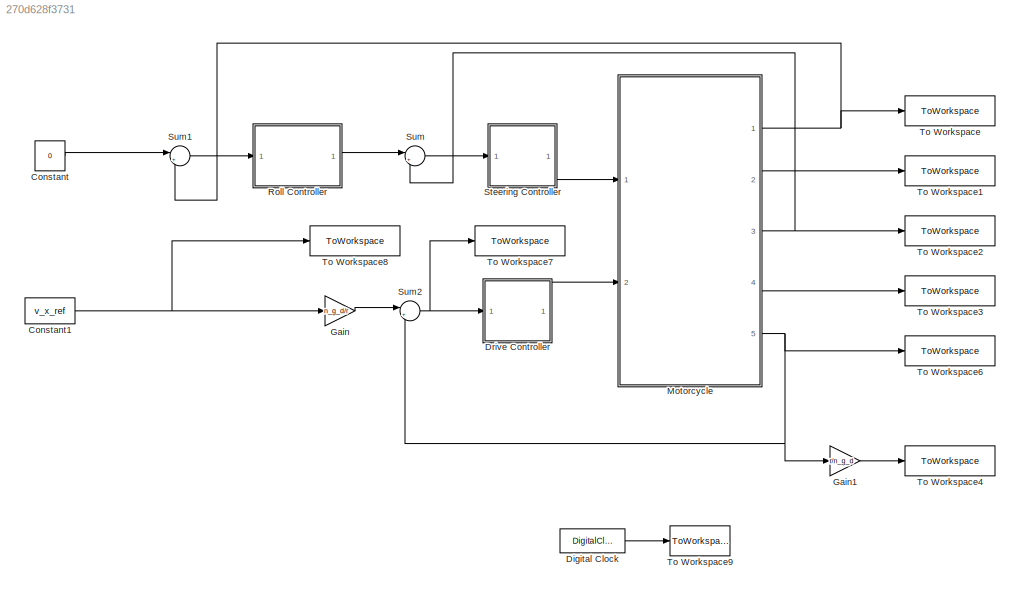
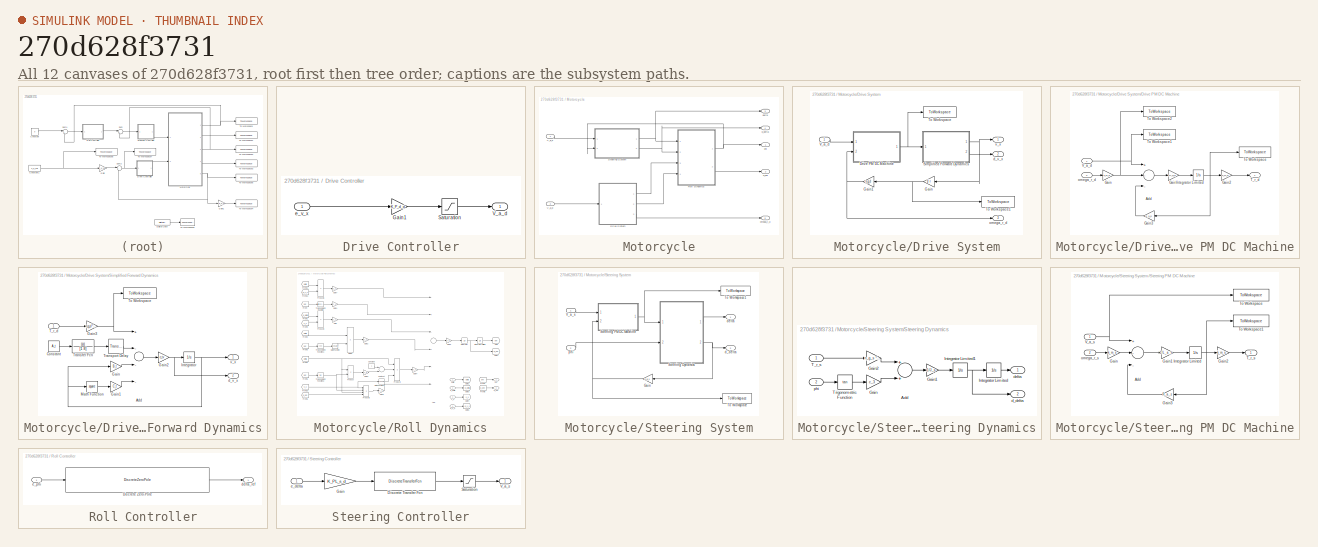
[diagram: thumbnail index - all 12 canvases of the model, root first then tree order]
MODEL slx_270d628f3731
KIND model
CONFIG AbsTol = auto
CONFIG EnableMultiTasking = off
CONFIG FixedStep = auto
CONFIG MaxStep = max_time_step
CONFIG MinStep = auto
CONFIG RelTol = 1e-3
CONFIG SampleTimeConstraint = Unconstrained
CONFIG Solver = VariableStepAuto
CONFIG SolverName = VariableStepAuto
CONFIG StartTime = 0.0
CONFIG StopTime = Tsim
BLOCK [Constant] Constant
  Value = 0
BLOCK [Constant] Constant1
  Value = v_x_ref
BLOCK [DigitalClock] Digital Clock
  SampleTime = T_s
BLOCK [SubSystem] Drive Controller
  Ports = [1, 1]
  RequestExecContextInheritance = off
BLOCK [Gain] Drive Controller/Gain1
  AttributesFormatString = %<Gain>
  Gain = K_P_d_d
  OutDataTypeStr = Inherit: Inherit via internal rule
  ParamDataTypeStr = Inherit: Inherit via internal rule
  SaturateOnIntegerOverflow = off
BLOCK [Saturate] Drive Controller/Saturation
  InputPortMap = u0
  LowerLimit = -V_a_max
  Ports = [1, 1]
  UpperLimit = V_a_max
BLOCK [Outport] Drive Controller/V_a_d
  IconDisplay = Port number
BLOCK [Inport] Drive Controller/e_v_x
  IconDisplay = Port number
BLOCK [Gain] Gain
  AttributesFormatString = %<Gain>
  Gain = n_g_d/r
  OutDataTypeStr = Inherit: Inherit via internal rule
  ParamDataTypeStr = Inherit: Inherit via internal rule
  SaturateOnIntegerOverflow = off
BLOCK [Gain] Gain1
  AttributesFormatString = %<Gain>
  Gain = r/n_g_d
  OutDataTypeStr = Inherit: Inherit via internal rule
  ParamDataTypeStr = Inherit: Inherit via internal rule
  SaturateOnIntegerOverflow = off
BLOCK [SubSystem] Motorcycle
  Ports = [2, 5]
  RequestExecContextInheritance = off
BLOCK [SubSystem] Motorcycle/Drive System
  Ports = [1, 3]
  RequestExecContextInheritance = off
BLOCK [SubSystem] Motorcycle/Drive System/Drive PM DC Machine
  Ports = [2, 1]
  RequestExecContextInheritance = off
BLOCK [Sum] Motorcycle/Drive System/Drive PM DC Machine/Add
  InputSameDT = off
  Inputs = +--
  OutDataTypeStr = Inherit: Inherit via internal rule
  Ports = [3, 1]
  SaturateOnIntegerOverflow = off
BLOCK [Gain] Motorcycle/Drive System/Drive PM DC Machine/Gain
  AttributesFormatString = %<Gain>
  Gain = k_m_d
  OutDataTypeStr = Inherit: Inherit via internal rule
  ParamDataTypeStr = Inherit: Inherit via internal rule
  SaturateOnIntegerOverflow = off
BLOCK [Gain] Motorcycle/Drive System/Drive PM DC Machine/Gain1
  AttributesFormatString = %<Gain>
  Gain = 1/L_a_d
  OutDataTypeStr = Inherit: Inherit via internal rule
  ParamDataTypeStr = Inherit: Inherit via internal rule
  SaturateOnIntegerOverflow = off
BLOCK [Gain] Motorcycle/Drive System/Drive PM DC Machine/Gain2
  AttributesFormatString = %<Gain>
  Gain = k_m_d
  OutDataTypeStr = Inherit: Inherit via internal rule
  ParamDataTypeStr = Inherit: Inherit via internal rule
  SaturateOnIntegerOverflow = off
BLOCK [Gain] Motorcycle/Drive System/Drive PM DC Machine/Gain3
  AttributesFormatString = %<Gain>
  Gain = R_a_d
  OutDataTypeStr = Inherit: Inherit via internal rule
  ParamDataTypeStr = Inherit: Inherit via internal rule
  SaturateOnIntegerOverflow = off
BLOCK [Integrator] Motorcycle/Drive System/Drive PM DC Machine/Integrator Limited
  LimitOutput = on
  LowerSaturationLimit = -i_a_max
  Ports = [1, 1]
  UpperSaturationLimit = i_a_max
BLOCK [Outport] Motorcycle/Drive System/Drive PM DC Machine/T_r_d
  IconDisplay = Port number
  VectorParamsAs1DForOutWhenUnconnected = off
BLOCK [ToWorkspace] Motorcycle/Drive System/Drive PM DC Machine/To Workspace
  FixptAsFi = on
  MaxDataPoints = inf
  Ports = [1]
  SampleTime = T_s
  VariableName = i_a_d
BLOCK [ToWorkspace] Motorcycle/Drive System/Drive PM DC Machine/To Workspace1
  FixptAsFi = on
  MaxDataPoints = inf
  Ports = [1]
  SampleTime = T_s
  VariableName = V_a_d
BLOCK [ToWorkspace] Motorcycle/Drive System/Drive PM DC Machine/To Workspace2
  FixptAsFi = on
  MaxDataPoints = inf
  Ports = [1]
  SampleTime = T_s
  VariableName = E_a_d
BLOCK [Inport] Motorcycle/Drive System/Drive PM DC Machine/V_a_d
  IconDisplay = Port number
BLOCK [Inport] Motorcycle/Drive System/Drive PM DC Machine/omega_r_d
  IconDisplay = Port number
  Port = 2
BLOCK [Gain] Motorcycle/Drive System/Gain
  AttributesFormatString = %<Gain>
  Gain = 1/ r
  OutDataTypeStr = Inherit: Inherit via internal rule
  ParamDataTypeStr = Inherit: Inherit via internal rule
  SaturateOnIntegerOverflow = off
BLOCK [Gain] Motorcycle/Drive System/Gain1
  AttributesFormatString = %<Gain>
  Gain = n_g_d
  OutDataTypeStr = Inherit: Inherit via internal rule
  ParamDataTypeStr = Inherit: Inherit via internal rule
  SaturateOnIntegerOverflow = off
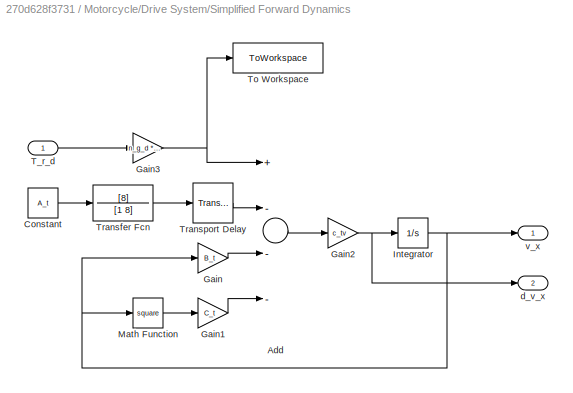
BLOCK [SubSystem] Motorcycle/Drive System/Simplified Forward Dynamics
  Ports = [1, 2]
  RequestExecContextInheritance = off
BLOCK [Sum] Motorcycle/Drive System/Simplified Forward Dynamics/Add
  InputSameDT = off
  Inputs = +---
  OutDataTypeStr = Inherit: Inherit via internal rule
  Ports = [4, 1]
  SaturateOnIntegerOverflow = off
BLOCK [Constant] Motorcycle/Drive System/Simplified Forward Dynamics/Constant
  Value = A_t
BLOCK [Gain] Motorcycle/Drive System/Simplified Forward Dynamics/Gain
  Gain = B_t
  OutDataTypeStr = Inherit: Inherit via internal rule
  ParamDataTypeStr = Inherit: Inherit via internal rule
  SaturateOnIntegerOverflow = off
BLOCK [Gain] Motorcycle/Drive System/Simplified Forward Dynamics/Gain1
  Gain = C_t
  OutDataTypeStr = Inherit: Inherit via internal rule
  ParamDataTypeStr = Inherit: Inherit via internal rule
  SaturateOnIntegerOverflow = off
BLOCK [Gain] Motorcycle/Drive System/Simplified Forward Dynamics/Gain2
  Gain = c_tv
  OutDataTypeStr = Inherit: Inherit via internal rule
  ParamDataTypeStr = Inherit: Inherit via internal rule
  SaturateOnIntegerOverflow = off
BLOCK [Gain] Motorcycle/Drive System/Simplified Forward Dynamics/Gain3
  AttributesFormatString = %<Gain>
  Gain = n_g_d * eta_g_d
  OutDataTypeStr = Inherit: Inherit via internal rule
  ParamDataTypeStr = Inherit: Inherit via internal rule
  SaturateOnIntegerOverflow = off
BLOCK [Integrator] Motorcycle/Drive System/Simplified Forward Dynamics/Integrator
  Ports = [1, 1]
BLOCK [Math] Motorcycle/Drive System/Simplified Forward Dynamics/Math Function
  Operator = square
  Ports = [1, 1]
BLOCK [Inport] Motorcycle/Drive System/Simplified Forward Dynamics/T_r_d
  IconDisplay = Port number
BLOCK [ToWorkspace] Motorcycle/Drive System/Simplified Forward Dynamics/To Workspace
  FixptAsFi = on
  MaxDataPoints = inf
  Ports = [1]
  SampleTime = T_s
  VariableName = T_axle_d
BLOCK [TransferFcn] Motorcycle/Drive System/Simplified Forward Dynamics/Transfer Fcn
  Denominator = [1 8]
  Numerator = [8]
BLOCK [TransportDelay] Motorcycle/Drive System/Simplified Forward Dynamics/Transport Delay
  BufferSize = 4096
  DelayTime = delay_theta
  Ports = [1, 1]
BLOCK [Outport] Motorcycle/Drive System/Simplified Forward Dynamics/d_v_x
  IconDisplay = Port number
  Port = 2
  VectorParamsAs1DForOutWhenUnconnected = off
BLOCK [Outport] Motorcycle/Drive System/Simplified Forward Dynamics/v_x
  IconDisplay = Port number
  VectorParamsAs1DForOutWhenUnconnected = off
BLOCK [ToWorkspace] Motorcycle/Drive System/To Workspace
  FixptAsFi = on
  MaxDataPoints = inf
  Ports = [1]
  SampleTime = T_s
  VariableName = T_r_d
BLOCK [ToWorkspace] Motorcycle/Drive System/To Workspace1
  FixptAsFi = on
  MaxDataPoints = inf
  Ports = [1]
  SampleTime = T_s
  VariableName = omega_axle_d
BLOCK [Inport] Motorcycle/Drive System/V_a_d
  IconDisplay = Port number
BLOCK [Outport] Motorcycle/Drive System/d_v_x
  IconDisplay = Port number
  Port = 2
  VectorParamsAs1DForOutWhenUnconnected = off
BLOCK [Outport] Motorcycle/Drive System/omega_r_d
  IconDisplay = Port number
  Port = 3
  VectorParamsAs1DForOutWhenUnconnected = off
BLOCK [Outport] Motorcycle/Drive System/v_x
  IconDisplay = Port number
  VectorParamsAs1DForOutWhenUnconnected = off
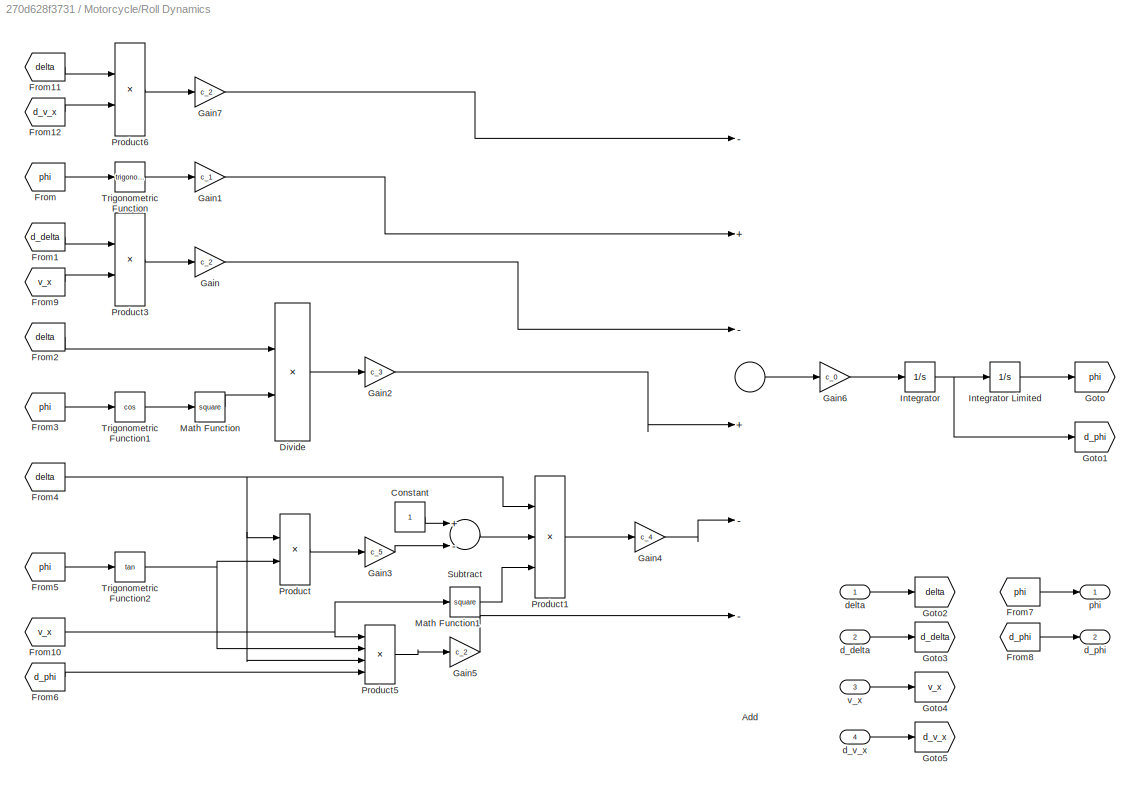
BLOCK [SubSystem] Motorcycle/Roll Dynamics
  Ports = [4, 2]
  RequestExecContextInheritance = off
BLOCK [Sum] Motorcycle/Roll Dynamics/Add
  InputSameDT = off
  Inputs = -+-+--
  OutDataTypeStr = Inherit: Inherit via internal rule
  Ports = [6, 1]
  SaturateOnIntegerOverflow = off
BLOCK [Constant] Motorcycle/Roll Dynamics/Constant
BLOCK [Product] Motorcycle/Roll Dynamics/Divide
  InputSameDT = off
  Inputs = */
  OutDataTypeStr = Inherit: Inherit via internal rule
  Ports = [2, 1]
  RndMeth = Floor
  SaturateOnIntegerOverflow = off
BLOCK [From] Motorcycle/Roll Dynamics/From
  GotoTag = phi
BLOCK [From] Motorcycle/Roll Dynamics/From1
  GotoTag = d_delta
BLOCK [From] Motorcycle/Roll Dynamics/From10
  GotoTag = v_x
BLOCK [From] Motorcycle/Roll Dynamics/From11
  GotoTag = delta
BLOCK [From] Motorcycle/Roll Dynamics/From12
  GotoTag = d_v_x
BLOCK [From] Motorcycle/Roll Dynamics/From2
  GotoTag = delta
BLOCK [From] Motorcycle/Roll Dynamics/From3
  GotoTag = phi
BLOCK [From] Motorcycle/Roll Dynamics/From4
  GotoTag = delta
BLOCK [From] Motorcycle/Roll Dynamics/From5
  GotoTag = phi
BLOCK [From] Motorcycle/Roll Dynamics/From6
  GotoTag = d_phi
BLOCK [From] Motorcycle/Roll Dynamics/From7
  GotoTag = phi
BLOCK [From] Motorcycle/Roll Dynamics/From8
  GotoTag = d_phi
BLOCK [From] Motorcycle/Roll Dynamics/From9
  GotoTag = v_x
BLOCK [Gain] Motorcycle/Roll Dynamics/Gain
  Gain = c_2
  OutDataTypeStr = Inherit: Inherit via internal rule
  ParamDataTypeStr = Inherit: Inherit via internal rule
  SaturateOnIntegerOverflow = off
BLOCK [Gain] Motorcycle/Roll Dynamics/Gain1
  Gain = c_1
  OutDataTypeStr = Inherit: Inherit via internal rule
  ParamDataTypeStr = Inherit: Inherit via internal rule
  SaturateOnIntegerOverflow = off
BLOCK [Gain] Motorcycle/Roll Dynamics/Gain2
  Gain = c_3
  OutDataTypeStr = Inherit: Inherit via internal rule
  ParamDataTypeStr = Inherit: Inherit via internal rule
  SaturateOnIntegerOverflow = off
BLOCK [Gain] Motorcycle/Roll Dynamics/Gain3
  Gain = c_5
  OutDataTypeStr = Inherit: Inherit via internal rule
  ParamDataTypeStr = Inherit: Inherit via internal rule
  SaturateOnIntegerOverflow = off
BLOCK [Gain] Motorcycle/Roll Dynamics/Gain4
  Gain = c_4
  OutDataTypeStr = Inherit: Inherit via internal rule
  ParamDataTypeStr = Inherit: Inherit via internal rule
  SaturateOnIntegerOverflow = off
BLOCK [Gain] Motorcycle/Roll Dynamics/Gain5
  Gain = c_2
  OutDataTypeStr = Inherit: Inherit via internal rule
  ParamDataTypeStr = Inherit: Inherit via internal rule
  SaturateOnIntegerOverflow = off
BLOCK [Gain] Motorcycle/Roll Dynamics/Gain6
  Gain = c_0
  OutDataTypeStr = Inherit: Inherit via internal rule
  ParamDataTypeStr = Inherit: Inherit via internal rule
  SaturateOnIntegerOverflow = off
BLOCK [Gain] Motorcycle/Roll Dynamics/Gain7
  Gain = c_2
  OutDataTypeStr = Inherit: Inherit via internal rule
  ParamDataTypeStr = Inherit: Inherit via internal rule
  SaturateOnIntegerOverflow = off
BLOCK [Goto] Motorcycle/Roll Dynamics/Goto
  GotoTag = phi
BLOCK [Goto] Motorcycle/Roll Dynamics/Goto1
  GotoTag = d_phi
BLOCK [Goto] Motorcycle/Roll Dynamics/Goto2
  GotoTag = delta
BLOCK [Goto] Motorcycle/Roll Dynamics/Goto3
  GotoTag = d_delta
BLOCK [Goto] Motorcycle/Roll Dynamics/Goto4
  GotoTag = v_x
BLOCK [Goto] Motorcycle/Roll Dynamics/Goto5
  GotoTag = d_v_x
BLOCK [Integrator] Motorcycle/Roll Dynamics/Integrator
  InitialCondition = d_phi_0
  Ports = [1, 1]
BLOCK [Integrator] Motorcycle/Roll Dynamics/Integrator Limited
  InitialCondition = phi_0
  LimitOutput = on
  LowerSaturationLimit = -pi/2
  Ports = [1, 1]
  UpperSaturationLimit = pi/2
BLOCK [Math] Motorcycle/Roll Dynamics/Math Function
  Operator = square
  Ports = [1, 1]
BLOCK [Math] Motorcycle/Roll Dynamics/Math Function1
  Operator = square
  Ports = [1, 1]
BLOCK [Product] Motorcycle/Roll Dynamics/Product
  InputSameDT = off
  OutDataTypeStr = Inherit: Inherit via internal rule
  Ports = [2, 1]
  RndMeth = Floor
  SaturateOnIntegerOverflow = off
BLOCK [Product] Motorcycle/Roll Dynamics/Product1
  InputSameDT = off
  Inputs = 3
  OutDataTypeStr = Inherit: Inherit via internal rule
  Ports = [3, 1]
  RndMeth = Floor
  SaturateOnIntegerOverflow = off
BLOCK [Product] Motorcycle/Roll Dynamics/Product3
  InputSameDT = off
  OutDataTypeStr = Inherit: Inherit via internal rule
  Ports = [2, 1]
  RndMeth = Floor
  SaturateOnIntegerOverflow = off
BLOCK [Product] Motorcycle/Roll Dynamics/Product5
  InputSameDT = off
  Inputs = 4
  OutDataTypeStr = Inherit: Inherit via internal rule
  Ports = [4, 1]
  RndMeth = Floor
  SaturateOnIntegerOverflow = off
BLOCK [Product] Motorcycle/Roll Dynamics/Product6
  InputSameDT = off
  OutDataTypeStr = Inherit: Inherit via internal rule
  Ports = [2, 1]
  RndMeth = Floor
  SaturateOnIntegerOverflow = off
BLOCK [Sum] Motorcycle/Roll Dynamics/Subtract
  InputSameDT = off
  Inputs = +-
  OutDataTypeStr = Inherit: Inherit via internal rule
  Ports = [2, 1]
  SaturateOnIntegerOverflow = off
BLOCK [Trigonometry] Motorcycle/Roll Dynamics/Trigonometric Function
  Ports = [1, 1]
BLOCK [Trigonometry] Motorcycle/Roll Dynamics/Trigonometric Function1
  Operator = cos
  Ports = [1, 1]
BLOCK [Trigonometry] Motorcycle/Roll Dynamics/Trigonometric Function2
  Operator = tan
  Ports = [1, 1]
BLOCK [Inport] Motorcycle/Roll Dynamics/d_delta
  IconDisplay = Port number
  Port = 2
BLOCK [Outport] Motorcycle/Roll Dynamics/d_phi
  IconDisplay = Port number
  Port = 2
  VectorParamsAs1DForOutWhenUnconnected = off
BLOCK [Inport] Motorcycle/Roll Dynamics/d_v_x
  IconDisplay = Port number
  Port = 4
BLOCK [Inport] Motorcycle/Roll Dynamics/delta
  IconDisplay = Port number
BLOCK [Outport] Motorcycle/Roll Dynamics/phi
  IconDisplay = Port number
  VectorParamsAs1DForOutWhenUnconnected = off
BLOCK [Inport] Motorcycle/Roll Dynamics/v_x
  IconDisplay = Port number
  Port = 3
BLOCK [SubSystem] Motorcycle/Steering System
  Ports = [2, 2]
  RequestExecContextInheritance = off
BLOCK [Gain] Motorcycle/Steering System/Gain
  AttributesFormatString = %<Gain>
  Gain = n_g_s
  OutDataTypeStr = Inherit: Inherit via internal rule
  ParamDataTypeStr = Inherit: Inherit via internal rule
  SaturateOnIntegerOverflow = off
BLOCK [SubSystem] Motorcycle/Steering System/Steering Dynamics
  Ports = [2, 2]
  RequestExecContextInheritance = off
BLOCK [Sum] Motorcycle/Steering System/Steering Dynamics/Add
  InputSameDT = off
  OutDataTypeStr = Inherit: Inherit via internal rule
  Ports = [2, 1]
  SaturateOnIntegerOverflow = off
BLOCK [Gain] Motorcycle/Steering System/Steering Dynamics/Gain
  Gain = c_3
  OutDataTypeStr = Inherit: Inherit via internal rule
  ParamDataTypeStr = Inherit: Inherit via internal rule
  SaturateOnIntegerOverflow = off
BLOCK [Gain] Motorcycle/Steering System/Steering Dynamics/Gain1
  AttributesFormatString = %<Gain>
  Gain = 1/J_s
  OutDataTypeStr = Inherit: Inherit via internal rule
  ParamDataTypeStr = Inherit: Inherit via internal rule
  SaturateOnIntegerOverflow = off
BLOCK [Gain] Motorcycle/Steering System/Steering Dynamics/Gain2
  AttributesFormatString = %<Gain>
  Gain = n_g_s * eta_g_s
  OutDataTypeStr = Inherit: Inherit via internal rule
  ParamDataTypeStr = Inherit: Inherit via internal rule
  SaturateOnIntegerOverflow = off
BLOCK [Integrator] Motorcycle/Steering System/Steering Dynamics/Integrator Limited
  InitialCondition = delta_0
  LimitOutput = on
  LowerSaturationLimit = -delta_max
  Ports = [1, 1]
  UpperSaturationLimit = delta_max
BLOCK [Integrator] Motorcycle/Steering System/Steering Dynamics/Integrator Limited1
  LimitOutput = on
  LowerSaturationLimit = -d_delta_max
  Ports = [1, 1]
  UpperSaturationLimit = d_delta_max
BLOCK [Inport] Motorcycle/Steering System/Steering Dynamics/T_r_s
  IconDisplay = Port number
BLOCK [Trigonometry] Motorcycle/Steering System/Steering Dynamics/Trigonometric Function
  Operator = tan
  Ports = [1, 1]
BLOCK [Outport] Motorcycle/Steering System/Steering Dynamics/d_delta
  IconDisplay = Port number
  Port = 2
  VectorParamsAs1DForOutWhenUnconnected = off
BLOCK [Outport] Motorcycle/Steering System/Steering Dynamics/delta
  IconDisplay = Port number
  VectorParamsAs1DForOutWhenUnconnected = off
BLOCK [Inport] Motorcycle/Steering System/Steering Dynamics/phi
  IconDisplay = Port number
  Port = 2
BLOCK [SubSystem] Motorcycle/Steering System/Steering PM DC Machine
  Ports = [2, 1]
  RequestExecContextInheritance = off
BLOCK [Sum] Motorcycle/Steering System/Steering PM DC Machine/Add
  InputSameDT = off
  Inputs = +--
  OutDataTypeStr = Inherit: Inherit via internal rule
  Ports = [3, 1]
  SaturateOnIntegerOverflow = off
BLOCK [Gain] Motorcycle/Steering System/Steering PM DC Machine/Gain
  AttributesFormatString = %<Gain>
  Gain = k_m_s
  OutDataTypeStr = Inherit: Inherit via internal rule
  ParamDataTypeStr = Inherit: Inherit via internal rule
  SaturateOnIntegerOverflow = off
BLOCK [Gain] Motorcycle/Steering System/Steering PM DC Machine/Gain1
  AttributesFormatString = %<Gain>
  Gain = 1/L_a_s
  OutDataTypeStr = Inherit: Inherit via internal rule
  ParamDataTypeStr = Inherit: Inherit via internal rule
  SaturateOnIntegerOverflow = off
BLOCK [Gain] Motorcycle/Steering System/Steering PM DC Machine/Gain2
  AttributesFormatString = %<Gain>
  Gain = k_m_s
  OutDataTypeStr = Inherit: Inherit via internal rule
  ParamDataTypeStr = Inherit: Inherit via internal rule
  SaturateOnIntegerOverflow = off
BLOCK [Gain] Motorcycle/Steering System/Steering PM DC Machine/Gain3
  AttributesFormatString = %<Gain>
  Gain = R_a_s
  OutDataTypeStr = Inherit: Inherit via internal rule
  ParamDataTypeStr = Inherit: Inherit via internal rule
  SaturateOnIntegerOverflow = off
BLOCK [Integrator] Motorcycle/Steering System/Steering PM DC Machine/Integrator Limited
  LimitOutput = on
  LowerSaturationLimit = -i_a_max
  Ports = [1, 1]
  UpperSaturationLimit = i_a_max
BLOCK [Outport] Motorcycle/Steering System/Steering PM DC Machine/T_r_s
  IconDisplay = Port number
  VectorParamsAs1DForOutWhenUnconnected = off
BLOCK [ToWorkspace] Motorcycle/Steering System/Steering PM DC Machine/To Workspace
  FixptAsFi = on
  MaxDataPoints = inf
  Ports = [1]
  SampleTime = T_s
  VariableName = V_a_s
BLOCK [ToWorkspace] Motorcycle/Steering System/Steering PM DC Machine/To Workspace1
  FixptAsFi = on
  MaxDataPoints = inf
  Ports = [1]
  SampleTime = T_s
  VariableName = i_a_s
BLOCK [Inport] Motorcycle/Steering System/Steering PM DC Machine/V_a_s
  IconDisplay = Port number
BLOCK [Inport] Motorcycle/Steering System/Steering PM DC Machine/omega_r_s
  IconDisplay = Port number
  Port = 2
BLOCK [ToWorkspace] Motorcycle/Steering System/To Workspace
  FixptAsFi = on
  MaxDataPoints = inf
  Ports = [1]
  SampleTime = T_s
  VariableName = omega_r_s
BLOCK [ToWorkspace] Motorcycle/Steering System/To Workspace1
  FixptAsFi = on
  MaxDataPoints = inf
  Ports = [1]
  SampleTime = T_s
  VariableName = T_r_s
BLOCK [Inport] Motorcycle/Steering System/V_a_s
  IconDisplay = Port number
BLOCK [Outport] Motorcycle/Steering System/d_delta
  IconDisplay = Port number
  Port = 2
  VectorParamsAs1DForOutWhenUnconnected = off
BLOCK [Outport] Motorcycle/Steering System/delta
  IconDisplay = Port number
  VectorParamsAs1DForOutWhenUnconnected = off
BLOCK [Inport] Motorcycle/Steering System/phi
  IconDisplay = Port number
  Port = 2
BLOCK [Inport] Motorcycle/V_a_d
  IconDisplay = Port number
  Port = 2
BLOCK [Inport] Motorcycle/V_a_s
  IconDisplay = Port number
BLOCK [Outport] Motorcycle/d_delta
  IconDisplay = Port number
  Port = 4
BLOCK [Outport] Motorcycle/d_phi
  IconDisplay = Port number
  Port = 2
BLOCK [Outport] Motorcycle/delta
  IconDisplay = Port number
  Port = 3
BLOCK [Outport] Motorcycle/omega_r_d
  IconDisplay = Port number
  Port = 5
BLOCK [Outport] Motorcycle/phi
  IconDisplay = Port number
BLOCK [SubSystem] Roll Controller
  Ports = [1, 1]
  RequestExecContextInheritance = off
BLOCK [DiscreteZeroPole] Roll Controller/Discrete Zero-Pole
  Gain = [-K_DPDZ_r_d]
  Poles = [pole_DPDZ_r1_d, pole_DPDZ_r2_d]
  SampleTime = -1
  Zeros = [zero_DPDZ_r1_d, zero_DPDZ_r2_d]
BLOCK [Outport] Roll Controller/delta_ref
  IconDisplay = Port number
BLOCK [Inport] Roll Controller/e_phi
  IconDisplay = Port number
BLOCK [SubSystem] Steering Controller
  Ports = [1, 1]
  RequestExecContextInheritance = off
BLOCK [DiscreteTransferFcn] Steering Controller/Discrete Transfer Fcn
  Denominator = [1 -pole_PL_s_d]
  InputPortMap = u0
  Numerator = [1 -zero_PL_s_d]
  Ports = [1, 1]
  SampleTime = T_s
BLOCK [Gain] Steering Controller/Gain
  Gain = K_PL_s_d
  OutDataTypeStr = Inherit: Inherit via internal rule
  ParamDataTypeStr = Inherit: Inherit via internal rule
  SaturateOnIntegerOverflow = off
BLOCK [Saturate] Steering Controller/Saturation
  InputPortMap = u0
  LowerLimit = -V_a_max
  Ports = [1, 1]
  UpperLimit = V_a_max
BLOCK [Outport] Steering Controller/V_a_s
  IconDisplay = Port number
BLOCK [Inport] Steering Controller/e_delta
  IconDisplay = Port number
BLOCK [Sum] Sum
  IconShape = round
  InputSameDT = off
  Inputs = |+-
  OutDataTypeStr = Inherit: Inherit via internal rule
  Ports = [2, 1]
  SaturateOnIntegerOverflow = off
BLOCK [Sum] Sum1
  IconShape = round
  InputSameDT = off
  Inputs = |+-
  OutDataTypeStr = Inherit: Inherit via internal rule
  Ports = [2, 1]
  SaturateOnIntegerOverflow = off
BLOCK [Sum] Sum2
  IconShape = round
  InputSameDT = off
  Inputs = |+-
  OutDataTypeStr = Inherit: Inherit via internal rule
  Ports = [2, 1]
  SaturateOnIntegerOverflow = off
BLOCK [ToWorkspace] To Workspace
  FixptAsFi = on
  MaxDataPoints = inf
  Ports = [1]
  SampleTime = T_s
  VariableName = phi
BLOCK [ToWorkspace] To Workspace1
  FixptAsFi = on
  MaxDataPoints = inf
  Ports = [1]
  SampleTime = T_s
  VariableName = d_phi
BLOCK [ToWorkspace] To Workspace2
  FixptAsFi = on
  MaxDataPoints = inf
  Ports = [1]
  SampleTime = T_s
  VariableName = delta
BLOCK [ToWorkspace] To Workspace3
  FixptAsFi = on
  MaxDataPoints = inf
  Ports = [1]
  SampleTime = T_s
  VariableName = d_delta
BLOCK [ToWorkspace] To Workspace4
  FixptAsFi = on
  MaxDataPoints = inf
  Ports = [1]
  SampleTime = T_s
  VariableName = v_x
BLOCK [ToWorkspace] To Workspace6
  FixptAsFi = on
  MaxDataPoints = inf
  Ports = [1]
  SampleTime = T_s
  VariableName = omega_r_d
BLOCK [ToWorkspace] To Workspace7
  FixptAsFi = on
  MaxDataPoints = inf
  Ports = [1]
  SampleTime = T_s
  VariableName = e_omega_r_d
BLOCK [ToWorkspace] To Workspace8
  FixptAsFi = on
  MaxDataPoints = inf
  Ports = [1]
  SampleTime = T_s
  VariableName = v_x_ref_LP
BLOCK [ToWorkspace] To Workspace9
  FixptAsFi = on
  MaxDataPoints = inf
  Ports = [1]
  SampleTime = T_s
  VariableName = time
NET Constant1:1 -> Gain:1, To Workspace8:1
LINE Constant:1 -> Sum1:1
LINE Digital Clock:1 -> To Workspace9:1
LINE Drive Controller/Gain1:1 -> Drive Controller/Saturation:1
LINE Drive Controller/Saturation:1 -> Drive Controller/V_a_d:1
LINE Drive Controller/e_v_x:1 -> Drive Controller/Gain1:1
LINE Drive Controller:1 -> Motorcycle:2
LINE Gain1:1 -> To Workspace4:1
LINE Gain:1 -> Sum2:1
LINE Motorcycle/Drive System/Drive PM DC Machine/Add:1 -> Motorcycle/Drive System/Drive PM DC Machine/Gain1:1
LINE Motorcycle/Drive System/Drive PM DC Machine/Gain1:1 -> Motorcycle/Drive System/Drive PM DC Machine/Integrator Limited:1
LINE Motorcycle/Drive System/Drive PM DC Machine/Gain2:1 -> Motorcycle/Drive System/Drive PM DC Machine/T_r_d:1
LINE Motorcycle/Drive System/Drive PM DC Machine/Gain3:1 -> Motorcycle/Drive System/Drive PM DC Machine/Add:3
NET Motorcycle/Drive System/Drive PM DC Machine/Gain:1 -> Motorcycle/Drive System/Drive PM DC Machine/Add:2, Motorcycle/Drive System/Drive PM DC Machine/To Workspace2:1
NET Motorcycle/Drive System/Drive PM DC Machine/Integrator Limited:1 -> Motorcycle/Drive System/Drive PM DC Machine/Gain2:1, Motorcycle/Drive System/Drive PM DC Machine/Gain3:1, Motorcycle/Drive System/Drive PM DC Machine/To Workspace:1
NET Motorcycle/Drive System/Drive PM DC Machine/V_a_d:1 -> Motorcycle/Drive System/Drive PM DC Machine/Add:1, Motorcycle/Drive System/Drive PM DC Machine/To Workspace1:1
LINE Motorcycle/Drive System/Drive PM DC Machine/omega_r_d:1 -> Motorcycle/Drive System/Drive PM DC Machine/Gain:1
NET Motorcycle/Drive System/Drive PM DC Machine:1 -> Motorcycle/Drive System/Simplified Forward Dynamics:1, Motorcycle/Drive System/To Workspace:1
NET Motorcycle/Drive System/Gain1:1 -> Motorcycle/Drive System/Drive PM DC Machine:2, Motorcycle/Drive System/omega_r_d:1
NET Motorcycle/Drive System/Gain:1 -> Motorcycle/Drive System/Gain1:1, Motorcycle/Drive System/To Workspace1:1
LINE Motorcycle/Drive System/Simplified Forward Dynamics/Add:1 -> Motorcycle/Drive System/Simplified Forward Dynamics/Gain2:1
LINE Motorcycle/Drive System/Simplified Forward Dynamics/Constant:1 -> Motorcycle/Drive System/Simplified Forward Dynamics/Transfer Fcn:1
LINE Motorcycle/Drive System/Simplified Forward Dynamics/Gain1:1 -> Motorcycle/Drive System/Simplified Forward Dynamics/Add:4
NET Motorcycle/Drive System/Simplified Forward Dynamics/Gain2:1 -> Motorcycle/Drive System/Simplified Forward Dynamics/Integrator:1, Motorcycle/Drive System/Simplified Forward Dynamics/d_v_x:1
NET Motorcycle/Drive System/Simplified Forward Dynamics/Gain3:1 -> Motorcycle/Drive System/Simplified Forward Dynamics/Add:1, Motorcycle/Drive System/Simplified Forward Dynamics/To Workspace:1
LINE Motorcycle/Drive System/Simplified Forward Dynamics/Gain:1 -> Motorcycle/Drive System/Simplified Forward Dynamics/Add:3
NET Motorcycle/Drive System/Simplified Forward Dynamics/Integrator:1 -> Motorcycle/Drive System/Simplified Forward Dynamics/Gain:1, Motorcycle/Drive System/Simplified Forward Dynamics/Math Function:1, Motorcycle/Drive System/Simplified Forward Dynamics/v_x:1
LINE Motorcycle/Drive System/Simplified Forward Dynamics/Math Function:1 -> Motorcycle/Drive System/Simplified Forward Dynamics/Gain1:1
LINE Motorcycle/Drive System/Simplified Forward Dynamics/T_r_d:1 -> Motorcycle/Drive System/Simplified Forward Dynamics/Gain3:1
LINE Motorcycle/Drive System/Simplified Forward Dynamics/Transfer Fcn:1 -> Motorcycle/Drive System/Simplified Forward Dynamics/Transport Delay:1
LINE Motorcycle/Drive System/Simplified Forward Dynamics/Transport Delay:1 -> Motorcycle/Drive System/Simplified Forward Dynamics/Add:2
NET Motorcycle/Drive System/Simplified Forward Dynamics:1 -> Motorcycle/Drive System/Gain:1, Motorcycle/Drive System/v_x:1
LINE Motorcycle/Drive System/Simplified Forward Dynamics:2 -> Motorcycle/Drive System/d_v_x:1
LINE Motorcycle/Drive System/V_a_d:1 -> Motorcycle/Drive System/Drive PM DC Machine:1
LINE Motorcycle/Drive System:1 -> Motorcycle/Roll Dynamics:3
LINE Motorcycle/Drive System:2 -> Motorcycle/Roll Dynamics:4
LINE Motorcycle/Drive System:3 -> Motorcycle/omega_r_d:1
LINE Motorcycle/Roll Dynamics/Add:1 -> Motorcycle/Roll Dynamics/Gain6:1
LINE Motorcycle/Roll Dynamics/Constant:1 -> Motorcycle/Roll Dynamics/Subtract:1
LINE Motorcycle/Roll Dynamics/Divide:1 -> Motorcycle/Roll Dynamics/Gain2:1
NET Motorcycle/Roll Dynamics/From10:1 -> Motorcycle/Roll Dynamics/Math Function1:1, Motorcycle/Roll Dynamics/Product5:1
LINE Motorcycle/Roll Dynamics/From11:1 -> Motorcycle/Roll Dynamics/Product6:1
LINE Motorcycle/Roll Dynamics/From12:1 -> Motorcycle/Roll Dynamics/Product6:2
LINE Motorcycle/Roll Dynamics/From1:1 -> Motorcycle/Roll Dynamics/Product3:1
LINE Motorcycle/Roll Dynamics/From2:1 -> Motorcycle/Roll Dynamics/Divide:1
LINE Motorcycle/Roll Dynamics/From3:1 -> Motorcycle/Roll Dynamics/Trigonometric Function1:1
NET Motorcycle/Roll Dynamics/From4:1 -> Motorcycle/Roll Dynamics/Product1:1, Motorcycle/Roll Dynamics/Product5:3, Motorcycle/Roll Dynamics/Product:1
LINE Motorcycle/Roll Dynamics/From5:1 -> Motorcycle/Roll Dynamics/Trigonometric Function2:1
LINE Motorcycle/Roll Dynamics/From6:1 -> Motorcycle/Roll Dynamics/Product5:4
LINE Motorcycle/Roll Dynamics/From7:1 -> Motorcycle/Roll Dynamics/phi:1
LINE Motorcycle/Roll Dynamics/From8:1 -> Motorcycle/Roll Dynamics/d_phi:1
LINE Motorcycle/Roll Dynamics/From9:1 -> Motorcycle/Roll Dynamics/Product3:2
LINE Motorcycle/Roll Dynamics/From:1 -> Motorcycle/Roll Dynamics/Trigonometric Function:1
LINE Motorcycle/Roll Dynamics/Gain1:1 -> Motorcycle/Roll Dynamics/Add:2
LINE Motorcycle/Roll Dynamics/Gain2:1 -> Motorcycle/Roll Dynamics/Add:4
LINE Motorcycle/Roll Dynamics/Gain3:1 -> Motorcycle/Roll Dynamics/Subtract:2
LINE Motorcycle/Roll Dynamics/Gain4:1 -> Motorcycle/Roll Dynamics/Add:5
LINE Motorcycle/Roll Dynamics/Gain5:1 -> Motorcycle/Roll Dynamics/Add:6
LINE Motorcycle/Roll Dynamics/Gain6:1 -> Motorcycle/Roll Dynamics/Integrator:1
LINE Motorcycle/Roll Dynamics/Gain7:1 -> Motorcycle/Roll Dynamics/Add:1
LINE Motorcycle/Roll Dynamics/Gain:1 -> Motorcycle/Roll Dynamics/Add:3
LINE Motorcycle/Roll Dynamics/Integrator Limited:1 -> Motorcycle/Roll Dynamics/Goto:1
NET Motorcycle/Roll Dynamics/Integrator:1 -> Motorcycle/Roll Dynamics/Goto1:1, Motorcycle/Roll Dynamics/Integrator Limited:1
LINE Motorcycle/Roll Dynamics/Math Function1:1 -> Motorcycle/Roll Dynamics/Product1:3
LINE Motorcycle/Roll Dynamics/Math Function:1 -> Motorcycle/Roll Dynamics/Divide:2
LINE Motorcycle/Roll Dynamics/Product1:1 -> Motorcycle/Roll Dynamics/Gain4:1
LINE Motorcycle/Roll Dynamics/Product3:1 -> Motorcycle/Roll Dynamics/Gain:1
LINE Motorcycle/Roll Dynamics/Product5:1 -> Motorcycle/Roll Dynamics/Gain5:1
LINE Motorcycle/Roll Dynamics/Product6:1 -> Motorcycle/Roll Dynamics/Gain7:1
LINE Motorcycle/Roll Dynamics/Product:1 -> Motorcycle/Roll Dynamics/Gain3:1
LINE Motorcycle/Roll Dynamics/Subtract:1 -> Motorcycle/Roll Dynamics/Product1:2
LINE Motorcycle/Roll Dynamics/Trigonometric Function1:1 -> Motorcycle/Roll Dynamics/Math Function:1
NET Motorcycle/Roll Dynamics/Trigonometric Function2:1 -> Motorcycle/Roll Dynamics/Product5:2, Motorcycle/Roll Dynamics/Product:2
LINE Motorcycle/Roll Dynamics/Trigonometric Function:1 -> Motorcycle/Roll Dynamics/Gain1:1
LINE Motorcycle/Roll Dynamics/d_delta:1 -> Motorcycle/Roll Dynamics/Goto3:1
LINE Motorcycle/Roll Dynamics/d_v_x:1 -> Motorcycle/Roll Dynamics/Goto5:1
LINE Motorcycle/Roll Dynamics/delta:1 -> Motorcycle/Roll Dynamics/Goto2:1
LINE Motorcycle/Roll Dynamics/v_x:1 -> Motorcycle/Roll Dynamics/Goto4:1
NET Motorcycle/Roll Dynamics:1 -> Motorcycle/Steering System:2, Motorcycle/phi:1
LINE Motorcycle/Roll Dynamics:2 -> Motorcycle/d_phi:1
NET Motorcycle/Steering System/Gain:1 -> Motorcycle/Steering System/Steering PM DC Machine:2, Motorcycle/Steering System/To Workspace:1
LINE Motorcycle/Steering System/Steering Dynamics/Add:1 -> Motorcycle/Steering System/Steering Dynamics/Gain1:1
LINE Motorcycle/Steering System/Steering Dynamics/Gain1:1 -> Motorcycle/Steering System/Steering Dynamics/Integrator Limited1:1
LINE Motorcycle/Steering System/Steering Dynamics/Gain2:1 -> Motorcycle/Steering System/Steering Dynamics/Add:1
LINE Motorcycle/Steering System/Steering Dynamics/Gain:1 -> Motorcycle/Steering System/Steering Dynamics/Add:2
NET Motorcycle/Steering System/Steering Dynamics/Integrator Limited1:1 -> Motorcycle/Steering System/Steering Dynamics/Integrator Limited:1, Motorcycle/Steering System/Steering Dynamics/d_delta:1
LINE Motorcycle/Steering System/Steering Dynamics/Integrator Limited:1 -> Motorcycle/Steering System/Steering Dynamics/delta:1
LINE Motorcycle/Steering System/Steering Dynamics/T_r_s:1 -> Motorcycle/Steering System/Steering Dynamics/Gain2:1
LINE Motorcycle/Steering System/Steering Dynamics/Trigonometric Function:1 -> Motorcycle/Steering System/Steering Dynamics/Gain:1
LINE Motorcycle/Steering System/Steering Dynamics/phi:1 -> Motorcycle/Steering System/Steering Dynamics/Trigonometric Function:1
LINE Motorcycle/Steering System/Steering Dynamics:1 -> Motorcycle/Steering System/delta:1
NET Motorcycle/Steering System/Steering Dynamics:2 -> Motorcycle/Steering System/Gain:1, Motorcycle/Steering System/d_delta:1
LINE Motorcycle/Steering System/Steering PM DC Machine/Add:1 -> Motorcycle/Steering System/Steering PM DC Machine/Gain1:1
LINE Motorcycle/Steering System/Steering PM DC Machine/Gain1:1 -> Motorcycle/Steering System/Steering PM DC Machine/Integrator Limited:1
LINE Motorcycle/Steering System/Steering PM DC Machine/Gain2:1 -> Motorcycle/Steering System/Steering PM DC Machine/T_r_s:1
LINE Motorcycle/Steering System/Steering PM DC Machine/Gain3:1 -> Motorcycle/Steering System/Steering PM DC Machine/Add:3
LINE Motorcycle/Steering System/Steering PM DC Machine/Gain:1 -> Motorcycle/Steering System/Steering PM DC Machine/Add:2
NET Motorcycle/Steering System/Steering PM DC Machine/Integrator Limited:1 -> Motorcycle/Steering System/Steering PM DC Machine/Gain2:1, Motorcycle/Steering System/Steering PM DC Machine/Gain3:1, Motorcycle/Steering System/Steering PM DC Machine/To Workspace1:1
NET Motorcycle/Steering System/Steering PM DC Machine/V_a_s:1 -> Motorcycle/Steering System/Steering PM DC Machine/Add:1, Motorcycle/Steering System/Steering PM DC Machine/To Workspace:1
LINE Motorcycle/Steering System/Steering PM DC Machine/omega_r_s:1 -> Motorcycle/Steering System/Steering PM DC Machine/Gain:1
NET Motorcycle/Steering System/Steering PM DC Machine:1 -> Motorcycle/Steering System/Steering Dynamics:1, Motorcycle/Steering System/To Workspace1:1
LINE Motorcycle/Steering System/V_a_s:1 -> Motorcycle/Steering System/Steering PM DC Machine:1
LINE Motorcycle/Steering System/phi:1 -> Motorcycle/Steering System/Steering Dynamics:2
NET Motorcycle/Steering System:1 -> Motorcycle/Roll Dynamics:1, Motorcycle/delta:1
NET Motorcycle/Steering System:2 -> Motorcycle/Roll Dynamics:2, Motorcycle/d_delta:1
LINE Motorcycle/V_a_d:1 -> Motorcycle/Drive System:1
LINE Motorcycle/V_a_s:1 -> Motorcycle/Steering System:1
NET Motorcycle:1 -> Sum1:2, To Workspace:1
LINE Motorcycle:2 -> To Workspace1:1
NET Motorcycle:3 -> Sum:2, To Workspace2:1
LINE Motorcycle:4 -> To Workspace3:1
NET Motorcycle:5 -> Gain1:1, Sum2:2, To Workspace6:1
LINE Roll Controller/Discrete Zero-Pole:1 -> Roll Controller/delta_ref:1
LINE Roll Controller/e_phi:1 -> Roll Controller/Discrete Zero-Pole:1
LINE Roll Controller:1 -> Sum:1
LINE Steering Controller/Discrete Transfer Fcn:1 -> Steering Controller/Saturation:1
LINE Steering Controller/Gain:1 -> Steering Controller/Discrete Transfer Fcn:1
LINE Steering Controller/Saturation:1 -> Steering Controller/V_a_s:1
LINE Steering Controller/e_delta:1 -> Steering Controller/Gain:1
LINE Steering Controller:1 -> Motorcycle:1
LINE Sum1:1 -> Roll Controller:1
NET Sum2:1 -> Drive Controller:1, To Workspace7:1
LINE Sum:1 -> Steering Controller:1
note: NET lines group one-source signal fan-out (src -> all destinations, sorted); 1:1 wires keep LINE
